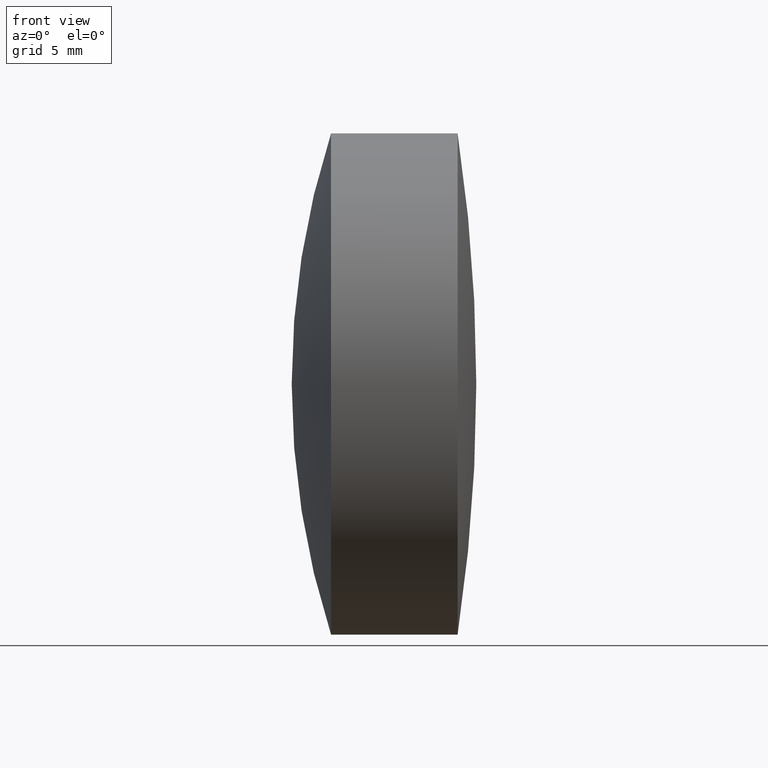
[diagram: clean part render]
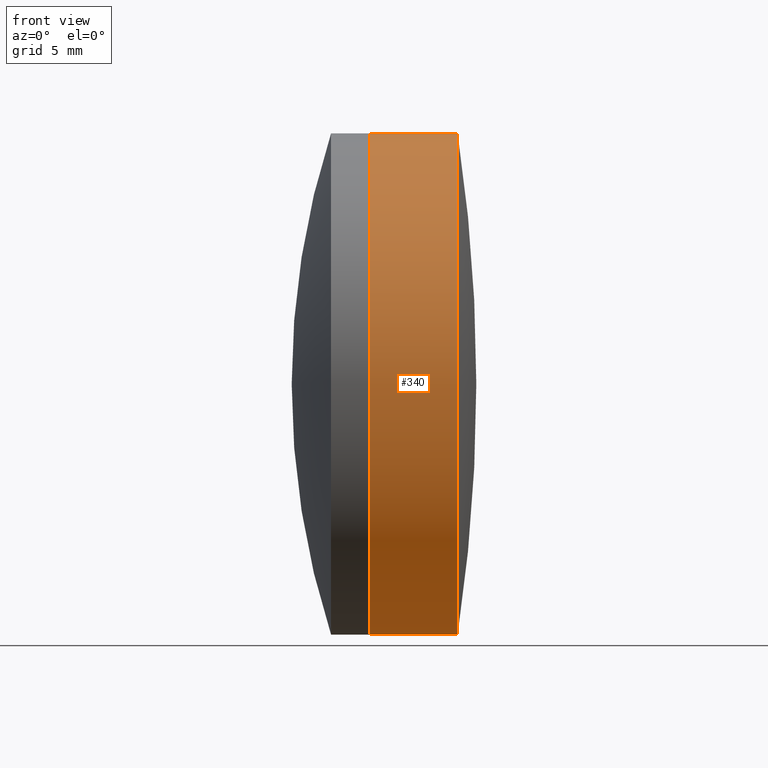
[diagram: same view with one face highlighted and labeled with its STEP entity id]
A machine part, front view. The second image highlights one B-rep face of the part: STEP entity #340.
In plain terms, the highlighted cylindrical surface (partial cylindrical patch) has radius 12.5 mm, axis along (-1, -0, -0).
Its self-contained STEP definition (entity closure, byte-faithful):
#7 = CARTESIAN_POINT ( 'NONE',  ( 45.93383545216690300, 0.0000000000000000000, 0.0000000000000000000 ) ) ;
#17 = LINE ( 'NONE', #49, #267 ) ;
#19 = EDGE_CURVE ( 'NONE', #178, #318, #17, .T. ) ;
#28 = DIRECTION ( 'NONE',  ( 0.0000000000000000000, 0.0000000000000000000, 1.000000000000000000 ) ) ;
#31 = VERTEX_POINT ( 'NONE', #159 ) ;
#33 = DIRECTION ( 'NONE',  ( -1.000000000000000000, -0.0000000000000000000, -0.0000000000000000000 ) ) ;
#49 = CARTESIAN_POINT ( 'NONE',  ( -0.5519199926577972300, 1.530808498934191900E-015, -12.50000000000000400 ) ) ;
#52 = AXIS2_PLACEMENT_3D ( 'NONE', #347, #186, #28 ) ;
#61 = CARTESIAN_POINT ( 'NONE',  ( -0.5519199926577972300, 0.0000000000000000000, 12.50000000000000400 ) ) ;
#73 = LINE ( 'NONE', #61, #331 ) ;
#75 = EDGE_CURVE ( 'NONE', #318, #308, #330, .T. ) ;
#103 = CYLINDRICAL_SURFACE ( 'NONE', #110, 12.50000000000000400 ) ;
#110 = AXIS2_PLACEMENT_3D ( 'NONE', #115, #292, #192 ) ;
#115 = CARTESIAN_POINT ( 'NONE',  ( -0.5519199926577972300, 0.0000000000000000000, 0.0000000000000000000 ) ) ;
#127 = CIRCLE ( 'NONE', #245, 12.49999999999999800 ) ;
#131 = ORIENTED_EDGE ( 'NONE', *, *, #19, .F. ) ;
#148 = ORIENTED_EDGE ( 'NONE', *, *, #323, .T. ) ;
#151 = EDGE_CURVE ( 'NONE', #178, #31, #127, .T. ) ;
#159 = CARTESIAN_POINT ( 'NONE',  ( 45.93383545216690300, 0.0000000000000000000, 12.49999999999999800 ) ) ;
#164 = CARTESIAN_POINT ( 'NONE',  ( 45.93383545216690300, 1.530808498934191700E-015, -12.49999999999999800 ) ) ;
#178 = VERTEX_POINT ( 'NONE', #164 ) ;
#186 = DIRECTION ( 'NONE',  ( -1.000000000000000000, -0.0000000000000000000, -0.0000000000000000000 ) ) ;
#191 = FACE_OUTER_BOUND ( 'NONE', #334, .T. ) ;
#192 = DIRECTION ( 'NONE',  ( 0.0000000000000000000, 0.0000000000000000000, 1.000000000000000000 ) ) ;
#207 = DIRECTION ( 'NONE',  ( -1.000000000000000000, -0.0000000000000000000, -0.0000000000000000000 ) ) ;
#214 = DIRECTION ( 'NONE',  ( -1.000000000000000000, -0.0000000000000000000, -0.0000000000000000000 ) ) ;
#218 = ORIENTED_EDGE ( 'NONE', *, *, #151, .T. ) ;
#245 = AXIS2_PLACEMENT_3D ( 'NONE', #7, #33, #263 ) ;
#263 = DIRECTION ( 'NONE',  ( 0.0000000000000000000, 0.0000000000000000000, 1.000000000000000000 ) ) ;
#267 = VECTOR ( 'NONE', #207, 1000.000000000000000 ) ;
#290 = CARTESIAN_POINT ( 'NONE',  ( 41.56290633338548400, 0.0000000000000000000, 12.50000000000000900 ) ) ;
#292 = DIRECTION ( 'NONE',  ( -1.000000000000000000, -0.0000000000000000000, -0.0000000000000000000 ) ) ;
#308 = VERTEX_POINT ( 'NONE', #290 ) ;
#317 = CARTESIAN_POINT ( 'NONE',  ( 41.56290633338548400, 1.530808498934192700E-015, -12.50000000000000900 ) ) ;
#318 = VERTEX_POINT ( 'NONE', #317 ) ;
#323 = EDGE_CURVE ( 'NONE', #31, #308, #73, .T. ) ;
#330 = CIRCLE ( 'NONE', #52, 12.50000000000000900 ) ;
#331 = VECTOR ( 'NONE', #214, 1000.000000000000000 ) ;
#334 = EDGE_LOOP ( 'NONE', ( #131, #218, #148, #339 ) ) ;
#339 = ORIENTED_EDGE ( 'NONE', *, *, #75, .F. ) ;
#340 = ADVANCED_FACE ( 'NONE', ( #191 ), #103, .T. ) ;
#347 = CARTESIAN_POINT ( 'NONE',  ( 41.56290633338548400, 0.0000000000000000000, 0.0000000000000000000 ) ) ;